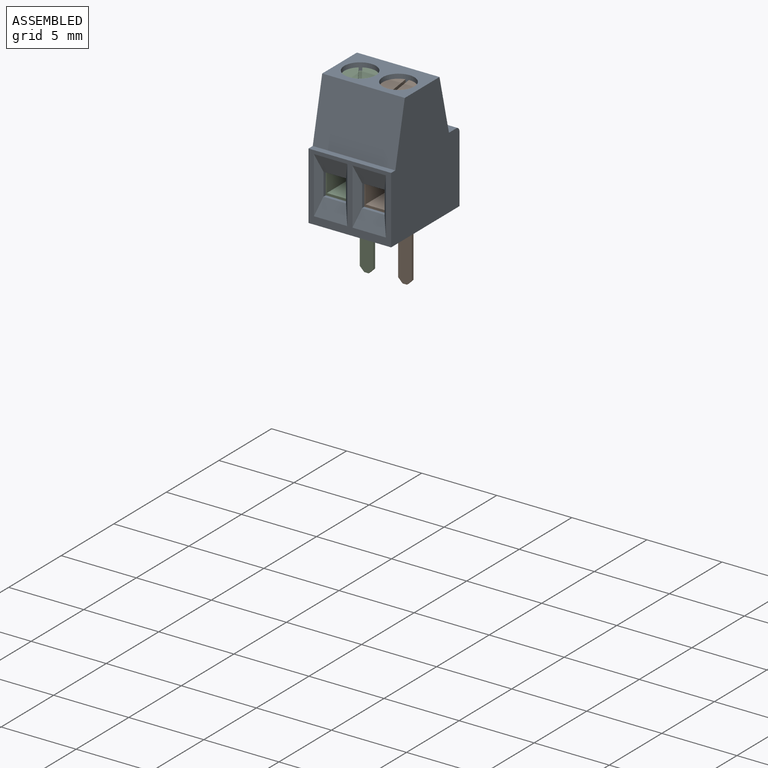
[diagram: assembled view]
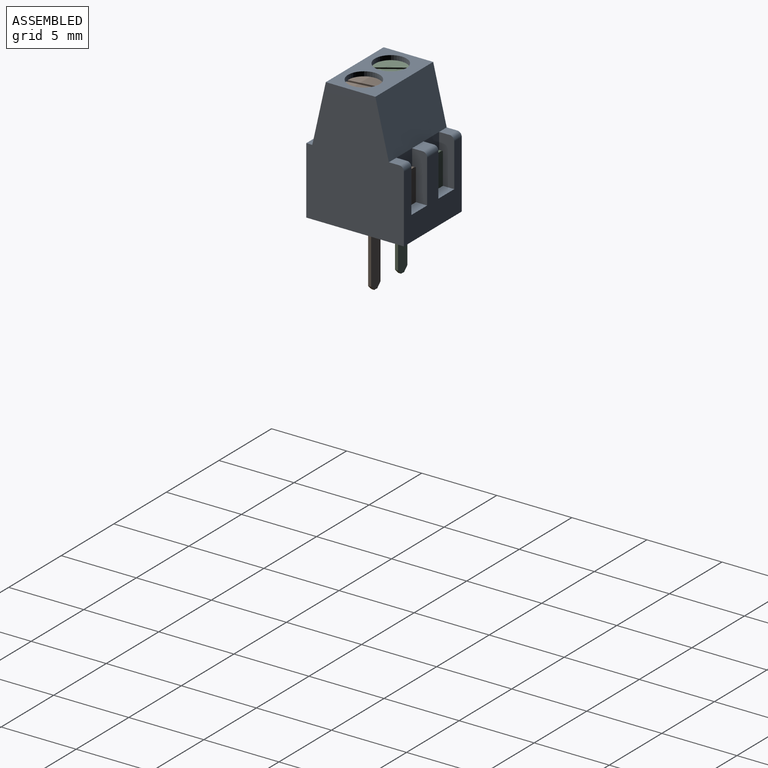
[diagram: assembled view, second angle]
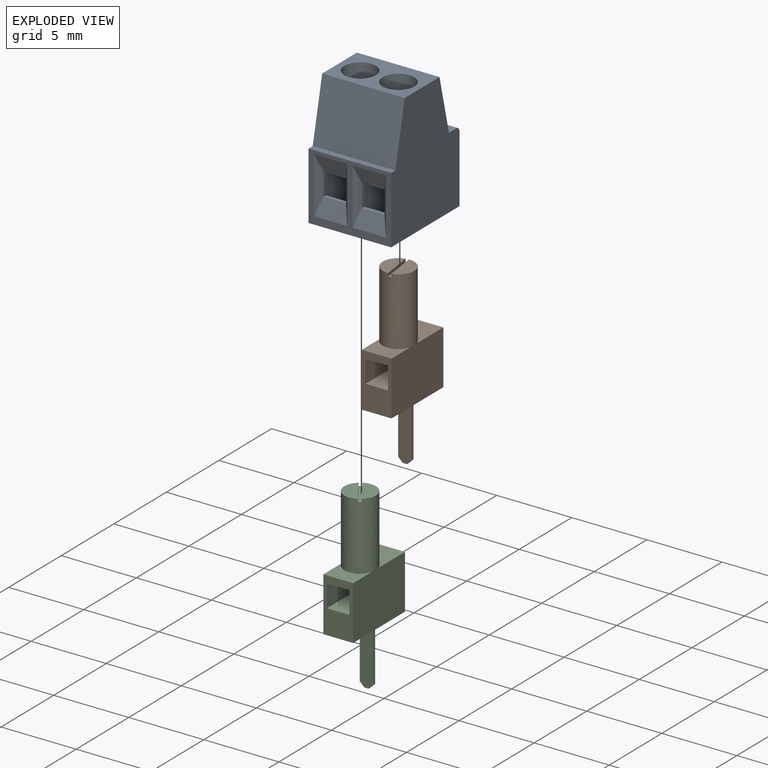
[diagram: exploded view]
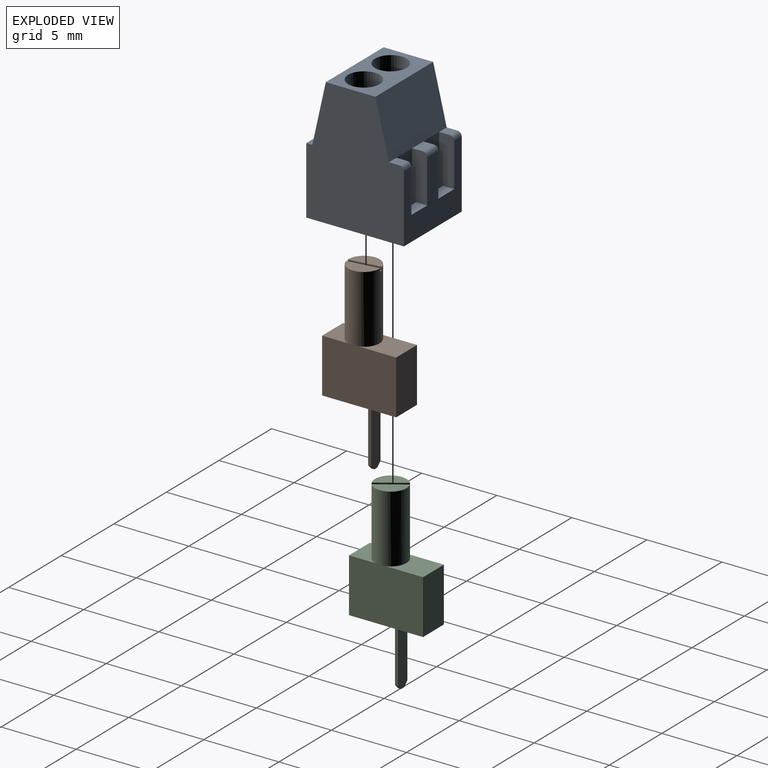
[diagram: exploded view, second angle]
ASSEMBLY  parts=3 mates=2
PART A: 51 faces, bbox 5.5x6.5x8.5 mm
  f0: plane 1.5x0.22mm, normal (0,0,-1), area 0.3mm2, adj f2,f4,f29,f40
  f1: plane 6.5x5.5mm, normal (0,0,-1), area 13.3mm2, adj f13,f17,f18,f20,f39,f40,f42,f43
  f2: plane 1.5x0.22mm, normal (-1,0,0), area 0.3mm2, adj f0,f7,f35,f40
  f3: plane 3.18x1mm, normal (-1,0,0), area 2.6mm2, adj f6,f12,f13,f21,f38,f39,f41
  f4: plane 1.5x0.22mm, normal (1,0,0), area 0.3mm2, adj f0,f7,f34,f40
  f5: plane 3.18x1mm, normal (1,0,0), area 2.6mm2, adj f6,f12,f13,f14,f37,f39,f41
  f6: plane 1.5x0.75mm, normal (0,0,1), area 1.1mm2, adj f3,f5,f13,f39
  f7: plane 1.5x0.22mm, normal (0,0,1), area 0.3mm2, adj f2,f4,f28,f40
  f8: plane 1.5x0.22mm, normal (-1,0,0), area 0.3mm2, adj f16,f27,f33,f45
  f9: plane 1.5x0.22mm, normal (1,0,0), area 0.3mm2, adj f16,f27,f32,f45
  f10: plane 1.5x0.75mm, normal (0,0,1), area 1.1mm2, adj f13,f25,f26,f44
  f11: plane 1.5x1.09mm, normal (0,1,0), area 1.6mm2, adj f22,f25,f26,f46
  f12: plane 1.5x1.09mm, normal (0,1,0), area 1.6mm2, adj f3,f5,f22,f41
  f13: plane 5.5x4.5mm, normal (0,1,0), area 16.1mm2, adj f1,f3,f5,f6,f10,f17,f20,f25
  f14: plane 1.07x0.7mm, normal (0,0,1), area 0.7mm2, adj f5,f22,f25,f37
  f15: plane 0.72x0.7mm, normal (0,0,1), area 0.5mm2, adj f17,f22,f26,f36
  f16: plane 1.5x0.22mm, normal (0,0,-1), area 0.3mm2, adj f8,f9,f31,f45
  f17: plane 8.5x6.5mm, normal (-1,0,0), area 46.4mm2, adj f1,f13,f15,f18,f19,f22,f23,f24
  f18: plane 5.5x4.48mm, normal (0,-1,0), area 8mm2, adj f1,f17,f20,f23,f28,f29,f30,f31
  f19: plane 5.5x3.3mm, normal (0,0,1), area 11.2mm2, adj f17,f20,f22,f24,f49,f50
  f20: plane 8.5x6.5mm, normal (1,0,0), area 46.4mm2, adj f1,f13,f18,f19,f21,f22,f23,f24
  f21: plane 0.72x0.7mm, normal (0,0,1), area 0.5mm2, adj f3,f20,f22,f38
  f22: plane 5.5x3.7mm, normal (0,0.97,0.24), area 20.9mm2, adj f11,f12,f14,f15,f17,f19,f20,f21
  f23: plane 5.5x0.4mm, normal (0,0,1), area 2.2mm2, adj f17,f18,f20,f24
  f24: plane 5.5x4.02mm, normal (0,-0.98,0.22), area 22.7mm2, adj f17,f19,f20,f23
  f25: plane 3.18x1mm, normal (-1,0,0), area 2.6mm2, adj f10,f11,f13,f14,f37,f44,f46
  f26: plane 3.18x1mm, normal (1,0,0), area 2.6mm2, adj f10,f11,f13,f15,f36,f44,f46
  f27: plane 1.5x0.22mm, normal (0,0,1), area 0.3mm2, adj f8,f9,f30,f45
  f28: plane 2.22x1.12mm, normal (0,-0.94,0.34), area 2.2mm2, adj f7,f18,f34,f35
  f29: plane 2.22x1.12mm, normal (0,-0.94,-0.34), area 2.2mm2, adj f0,f18,f34,f35
  f30: plane 2.22x1.12mm, normal (0,-0.94,0.34), area 2.2mm2, adj f18,f27,f32,f33
  f31: plane 2.22x1.12mm, normal (0,-0.94,-0.34), area 2.2mm2, adj f16,f18,f32,f33
  f32: plane 3.74x0.4mm, normal (0.74,-0.67,0), area 1.4mm2, adj f9,f18,f30,f31
  f33: plane 3.74x0.4mm, normal (-0.74,-0.67,0), area 1.4mm2, adj f8,f18,f30,f31
  f34: plane 3.74x0.4mm, normal (0.74,-0.67,0), area 1.4mm2, adj f4,f18,f28,f29
  f35: plane 3.74x0.4mm, normal (-0.74,-0.67,0), area 1.4mm2, adj f2,f18,f28,f29
  f36: cylinder r=0.3mm len=0.72mm, axis (1,0,0), area 0.3mm2, adj f13,f15,f17,f26
  f37: cylinder r=0.3mm len=1.07mm, axis (1,0,0), area 0.5mm2, adj f5,f13,f14,f25
  f38: cylinder r=0.3mm len=0.72mm, axis (1,0,0), area 0.3mm2, adj f3,f13,f20,f21
  f39: plane 3.71x2.19mm, normal (0,-1,0), area 5mm2, adj f1,f3,f5,f6,f41,f42,f43
  f40: plane 3.71x2.19mm, normal (0,1,0), area 5.9mm2, adj f0,f1,f2,f4,f7,f41,f42,f43
  f41: plane 5.13x2.19mm, normal (0,0,-1), area 7.3mm2, adj f3,f5,f12,f39,f40,f42,f43,f50
  f42: plane 5.13x3.71mm, normal (-1,0,0), area 19mm2, adj f1,f39,f40,f41
  f43: plane 5.13x3.71mm, normal (1,0,0), area 19mm2, adj f1,f39,f40,f41
  f44: plane 3.71x2.19mm, normal (0,-1,0), area 5mm2, adj f1,f10,f25,f26,f46,f47,f48
  f45: plane 3.71x2.19mm, normal (0,1,0), area 5.9mm2, adj f1,f8,f9,f16,f27,f46,f47,f48
  f46: plane 5.13x2.19mm, normal (0,0,-1), area 7.3mm2, adj f11,f25,f26,f44,f45,f47,f48,f49
  f47: plane 5.13x3.71mm, normal (1,0,0), area 19mm2, adj f1,f44,f45,f46
  f48: plane 5.13x3.71mm, normal (-1,0,0), area 19mm2, adj f1,f44,f45,f46
  f49: cylinder r=1.05mm len=4.79mm, axis (0,0,1), area 31.8mm2, adj f19,f46
  f50: cylinder r=1.05mm len=4.79mm, axis (0,0,1), area 31.8mm2, adj f19,f41
PART B: 27 faces, bbox 2.1x4.9x12.1 mm
  f0: plane 2.07x1.09mm, normal (0,0,1), area 1.5mm2, adj f21,f24
  f1: plane 2.5x1.99mm, normal (0,0,1), area 3.9mm2, adj f3,f4,f5,f21
  f2: plane 3.6x1.99mm, normal (0,-1,0), area 4.9mm2, adj f3,f5,f6,f7,f8,f9,f10,f11
  f3: plane 4.93x3.6mm, normal (-1,0,0), area 17.7mm2, adj f1,f2,f4,f6,f7,f23
  f4: plane 3.6x1.99mm, normal (0,1,0), area 7.1mm2, adj f1,f3,f5,f7
  f5: plane 4.93x3.6mm, normal (1,0,0), area 17.7mm2, adj f1,f2,f4,f6,f7,f20
  f6: plane 1.99x1.74mm, normal (0,0,1), area 2.4mm2, adj f2,f3,f5,f21
  f7: plane 4.93x1.99mm, normal (0,0,-1), area 9.6mm2, adj f2,f3,f4,f5,f13,f14,f15,f16
  f8: plane 4.5x1.5mm, normal (0,0,1), area 6.8mm2, adj f2,f9,f11,f12
  f9: plane 4.5x1.5mm, normal (-1,0,0), area 6.8mm2, adj f2,f8,f10,f12
  f10: plane 4.5x1.5mm, normal (0,0,-1), area 6.8mm2, adj f2,f9,f11,f12
  f11: plane 4.5x1.5mm, normal (1,0,0), area 6.8mm2, adj f2,f8,f10,f12
  f12: plane 1.5x1.5mm, normal (0,-1,0), area 2.3mm2, adj f8,f9,f10,f11
  f13: plane 3.7x0.2mm, normal (1,0,0), area 0.7mm2, adj f7,f14,f16,f18
  f14: plane 4x0.89mm, normal (0,-1,0), area 3.5mm2, adj f7,f13,f15,f17,f18,f19
  f15: plane 3.7x0.2mm, normal (-1,0,0), area 0.7mm2, adj f7,f14,f16,f19
  f16: plane 4x0.89mm, normal (0,1,0), area 3.5mm2, adj f7,f13,f15,f17,f18,f19
  f17: plane 0.29x0.2mm, normal (0,0,-1), area 0.1mm2, adj f14,f16,f18,f19
  f18: plane 0.3x0.3mm, normal (0.71,0,-0.71), area 0.1mm2, adj f13,f14,f16,f17
  f19: plane 0.3x0.3mm, normal (-0.71,0,-0.71), area 0.1mm2, adj f14,f15,f16,f17
  f20: plane 0.69x0.06mm, normal (0,0,-1), area 0mm2, adj f5,f21
  f21: cylinder r=1.05mm len=4.5mm, axis (0,0,-1), area 29.6mm2, adj f0,f1,f6,f20,f22,f23,f24,f25
  f22: plane 2.07x1.09mm, normal (0,0,1), area 1.5mm2, adj f21,f25
  f23: plane 0.69x0.06mm, normal (0,0,-1), area 0mm2, adj f3,f21
  f24: plane 2.07x0.28mm, normal (-0.99,-0.13,0), area 0.4mm2, adj f0,f21,f26
  f25: plane 2.07x0.28mm, normal (0.99,0.13,0), area 0.4mm2, adj f21,f22,f26
  f26: plane 2.1x0.48mm, normal (0,0,1), area 0.4mm2, adj f21,f24,f25
PART C: 27 faces, bbox 2.1x4.9x12.1 mm
  f0: plane 1.86x1.55mm, normal (0,0,1), area 1.5mm2, adj f21,f25
  f1: plane 2.5x1.99mm, normal (0,0,1), area 3.9mm2, adj f2,f4,f5,f21
  f2: plane 4.93x3.6mm, normal (1,0,0), area 17.7mm2, adj f1,f3,f5,f6,f7,f20
  f3: plane 3.6x1.99mm, normal (0,-1,0), area 4.9mm2, adj f2,f4,f6,f7,f8,f9,f10,f11
  f4: plane 4.93x3.6mm, normal (-1,0,0), area 17.7mm2, adj f1,f3,f5,f6,f7,f23
  f5: plane 3.6x1.99mm, normal (0,1,0), area 7.1mm2, adj f1,f2,f4,f7
  f6: plane 1.99x1.74mm, normal (0,0,1), area 2.4mm2, adj f2,f3,f4,f21
  f7: plane 4.93x1.99mm, normal (0,0,-1), area 9.6mm2, adj f2,f3,f4,f5,f13,f14,f15,f16
  f8: plane 4.5x1.5mm, normal (0,0,1), area 6.8mm2, adj f3,f9,f11,f12
  f9: plane 4.5x1.5mm, normal (-1,0,0), area 6.8mm2, adj f3,f8,f10,f12
  f10: plane 4.5x1.5mm, normal (0,0,-1), area 6.8mm2, adj f3,f9,f11,f12
  f11: plane 4.5x1.5mm, normal (1,0,0), area 6.8mm2, adj f3,f8,f10,f12
  f12: plane 1.5x1.5mm, normal (0,-1,0), area 2.3mm2, adj f8,f9,f10,f11
  f13: plane 3.7x0.2mm, normal (1,0,0), area 0.7mm2, adj f7,f14,f16,f18
  f14: plane 4x0.89mm, normal (0,-1,0), area 3.5mm2, adj f7,f13,f15,f17,f18,f19
  f15: plane 3.7x0.2mm, normal (-1,0,0), area 0.7mm2, adj f7,f14,f16,f19
  f16: plane 4x0.89mm, normal (0,1,0), area 3.5mm2, adj f7,f13,f15,f17,f18,f19
  f17: plane 0.29x0.2mm, normal (0,0,-1), area 0.1mm2, adj f14,f16,f18,f19
  f18: plane 0.3x0.3mm, normal (0.71,0,-0.71), area 0.1mm2, adj f13,f14,f16,f17
  f19: plane 0.3x0.3mm, normal (-0.71,0,-0.71), area 0.1mm2, adj f14,f15,f16,f17
  f20: plane 0.69x0.06mm, normal (0,0,-1), area 0mm2, adj f2,f21
  f21: cylinder r=1.05mm len=4.5mm, axis (0,0,-1), area 29.6mm2, adj f0,f1,f6,f20,f22,f23,f24,f25
  f22: plane 1.86x1.55mm, normal (0,0,1), area 1.5mm2, adj f21,f24
  f23: plane 0.69x0.06mm, normal (0,0,-1), area 0mm2, adj f4,f21
  f24: plane 1.73x1.17mm, normal (0.83,0.56,0), area 0.4mm2, adj f21,f22,f26
  f25: plane 1.73x1.17mm, normal (-0.83,-0.56,0), area 0.4mm2, adj f0,f21,f26
  f26: plane 1.85x1.33mm, normal (0,0,1), area 0.4mm2, adj f21,f24,f25
PLACE A t=(0,0,-0.1)mm
PLACE B at identity
PLACE C at identity
MATE fastened B.f21 <-> A.f50  axis (0,0,1) through (1.28,-0.44,8.1)mm
MATE fastened A.f49 <-> C.f21  axis (0,0,1) through (-1.28,-0.44,8.4)mm
